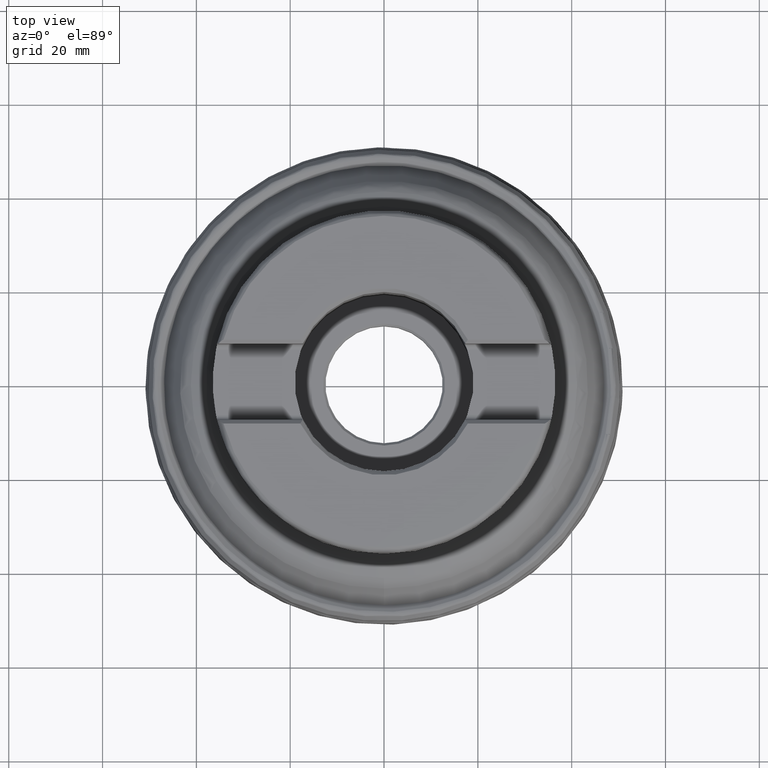
[diagram: clean part render]
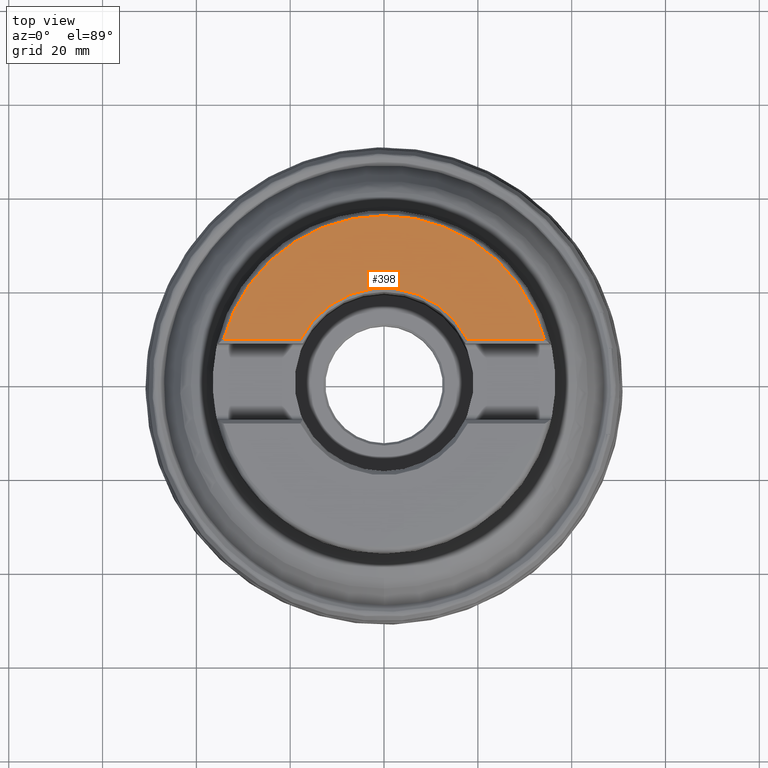
[diagram: same view with one face highlighted and labeled with its STEP entity id]
A machine part, top view. The second image highlights one B-rep face of the part: STEP entity #398.
In plain terms, the highlighted planar face has unit normal (0, 0, 1).
Its self-contained STEP definition (entity closure, byte-faithful):
#299=CIRCLE('',#1179,35.3717797887081);
#342=CIRCLE('',#1255,19.9547436862767);
#398=ADVANCED_FACE('',(#468),#448,.T.);
#448=PLANE('',#1256);
#468=FACE_OUTER_BOUND('',#534,.T.);
#534=EDGE_LOOP('',(#799,#800,#801,#802));
#625=LINE('',#2248,#652);
#626=LINE('',#2249,#653);
#652=VECTOR('',#1477,1.);
#653=VECTOR('',#1478,1.);
#799=ORIENTED_EDGE('',*,*,#1078,.T.);
#800=ORIENTED_EDGE('',*,*,#1079,.T.);
#801=ORIENTED_EDGE('',*,*,#1017,.F.);
#802=ORIENTED_EDGE('',*,*,#1080,.T.);
#921=VERTEX_POINT('',#1964);
#922=VERTEX_POINT('',#1965);
#965=VERTEX_POINT('',#2246);
#966=VERTEX_POINT('',#2247);
#1017=EDGE_CURVE('',#921,#922,#299,.T.);
#1078=EDGE_CURVE('',#965,#966,#342,.T.);
#1079=EDGE_CURVE('',#966,#922,#625,.T.);
#1080=EDGE_CURVE('',#921,#965,#626,.T.);
#1179=AXIS2_PLACEMENT_3D('',#1963,#1317,#1318);
#1255=AXIS2_PLACEMENT_3D('',#2245,#1475,#1476);
#1256=AXIS2_PLACEMENT_3D('',#2250,#1479,#1480);
#1317=DIRECTION('',(0.,-1.17145536458252E-15,-1.));
#1318=DIRECTION('',(0.,-1.,1.17702201224079E-15));
#1475=DIRECTION('',(0.,-1.17145536458252E-15,-1.));
#1476=DIRECTION('',(0.,-1.,1.04319464278751E-15));
#1477=DIRECTION('',(1.,-6.39711790766089E-31,7.49393809079628E-46));
#1478=DIRECTION('',(1.,-6.39711790766089E-31,7.49393809079628E-46));
#1479=DIRECTION('',(0.,1.17145536458252E-15,1.));
#1480=DIRECTION('',(0.,-1.,1.17267306976032E-15));
#1963=CARTESIAN_POINT('',(0.,7.06680448684408E-14,60.325));
#1964=CARTESIAN_POINT('',(-34.2233722099512,8.94000000000007,60.325));
#1965=CARTESIAN_POINT('',(34.2233722099512,8.94000000000007,60.325));
#2245=CARTESIAN_POINT('',(6.59576997154301E-14,6.53455752157654E-14,60.325));
#2246=CARTESIAN_POINT('',(-17.840072746068,8.94000000000005,60.325));
#2247=CARTESIAN_POINT('',(17.8400727460682,8.94000000000005,60.325));
#2248=CARTESIAN_POINT('',(5.71902340944883E-30,8.94000000000007,60.325));
#2249=CARTESIAN_POINT('',(5.71902340944883E-30,8.94000000000007,60.325));
#2250=CARTESIAN_POINT('',(0.,7.06680448684408E-14,60.325));